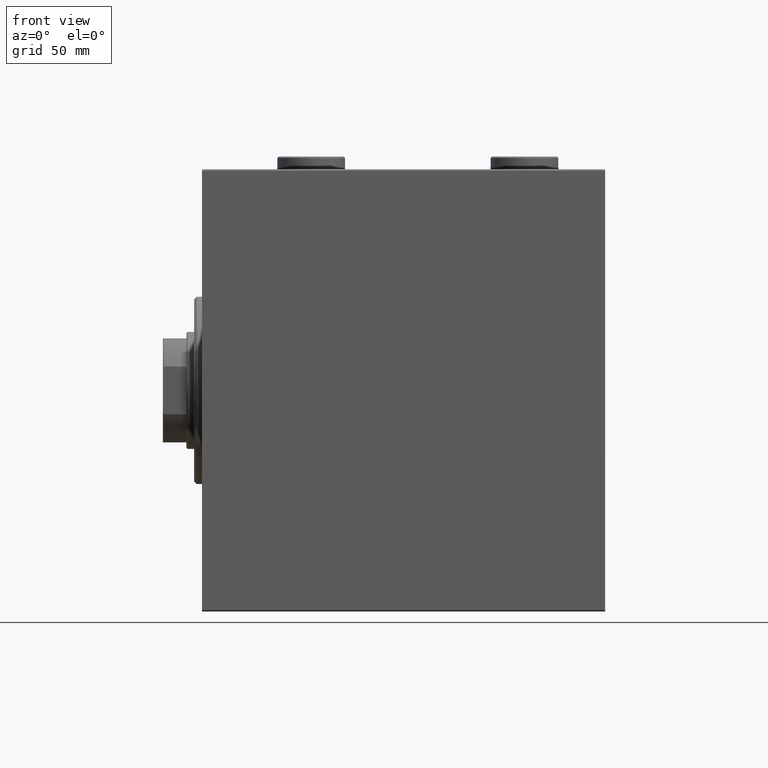
[diagram: clean part render]
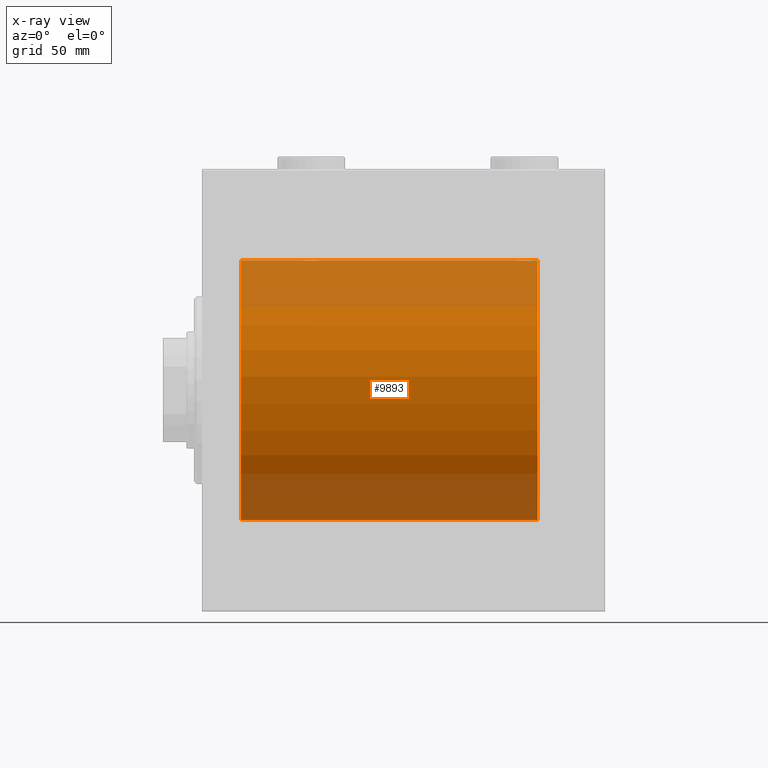
[diagram: x-ray — body ghosted, one internal face saturated and labeled with its STEP entity id]
A machine part, front view, then the same camera in x-ray: the body is ghosted and one INTERNAL B-rep face — a face not visible from any outside direction — is saturated and labeled: STEP entity #9893.
In plain terms, the highlighted cylindrical surface (partial cylindrical patch) has radius 50 mm, axis along (-1, -0, -0).
Its self-contained STEP definition (entity closure, byte-faithful):
#40 = CIRCLE ( 'NONE', #28056, 50.00000000000000000 ) ;
#101 = CARTESIAN_POINT ( 'NONE',  ( 129.0000000000000000, 6.123233995736766085E-15, -50.00000000000000000 ) ) ;
#409 = CARTESIAN_POINT ( 'NONE',  ( 129.0000000000000000, 6.123233995736766085E-15, -50.00000000000000000 ) ) ;
#445 = EDGE_LOOP ( 'NONE', ( #11033, #26401, #2624, #40806, #2026, #11689, #28108, #7104, #24722, #33511, #25622, #31688 ) ) ;
#1419 = VERTEX_POINT ( 'NONE', #7781 ) ;
#1695 = EDGE_CURVE ( 'NONE', #23733, #27597, #16130, .T. ) ;
#1954 = VERTEX_POINT ( 'NONE', #36827 ) ;
#2026 = ORIENTED_EDGE ( 'NONE', *, *, #10795, .T. ) ;
#2449 = CARTESIAN_POINT ( 'NONE',  ( 119.7500000000000000, -0.2773743941468521657, 50.00000000000001421 ) ) ;
#2559 = CARTESIAN_POINT ( 'NONE',  ( 38.62118282736263097, -2.593114840406133492, 49.93325460257641168 ) ) ;
#2624 = ORIENTED_EDGE ( 'NONE', *, *, #15354, .T. ) ;
#2677 = CARTESIAN_POINT ( 'NONE',  ( 126.5882021467620007, -3.382416624899781787, 49.88570010427956447 ) ) ;
#2908 = CARTESIAN_POINT ( 'NONE',  ( 122.1125526060720148, -3.818052230167721994, 49.85412671291930309 ) ) ;
#3021 = CARTESIAN_POINT ( 'NONE',  ( 40.89676703965783844, -4.113647494206490229, 49.83052139214891696 ) ) ;
#3134 = CARTESIAN_POINT ( 'NONE',  ( 128.2224263552077730, -0.5587117664567089470, 49.99763378604803421 ) ) ;
#3846 = CARTESIAN_POINT ( 'NONE',  ( 125.8874473939280136, -3.818052230167727323, -49.85412671291929598 ) ) ;
#4065 = CARTESIAN_POINT ( 'NONE',  ( 125.1032329603421545, -4.113647494206490229, -49.83052139214891696 ) ) ;
#4201 = CARTESIAN_POINT ( 'NONE',  ( 40.11782950515556934, -3.820681512513381506, -49.85392475515401145 ) ) ;
#4295 = CARTESIAN_POINT ( 'NONE',  ( 119.9692020384465678, -1.375411031076060997, -49.98173289062309976 ) ) ;
#4523 = CARTESIAN_POINT ( 'NONE',  ( 121.1930216816068935, -3.203153387937336394, -49.89767833571684719 ) ) ;
#4649 = CYLINDRICAL_SURFACE ( 'NONE', #6622, 50.00000000000000000 ) ;
#4749 = CARTESIAN_POINT ( 'NONE',  ( 122.9026238212096303, -4.115209769591122502, -49.83039196709102470 ) ) ;
#4852 = B_SPLINE_CURVE_WITH_KNOTS ( 'NONE', 3,
 ( #17935, #18153, #32475, #14685, #22303, #25076, #39642, #42877, #31790, #35486, #43106, #28760, #3846, #32024, #4065, #28302, #21392, #14460, #39416, #4749, #7529, #11223, #7298, #7978, #4523, #25301, #42422, #28986, #32704, #4295, #7750, #25753, #28535, #21842 ),
 .UNSPECIFIED., .F., .F.,
 ( 4, 2, 2, 2, 2, 2, 2, 2, 2, 2, 2, 2, 2, 2, 2, 2, 4 ),
 ( 0.01329343152928756308, 0.01412407817529634686, 0.01495472482130513238, 0.01578537146731391616, 0.01661601811332270168, 0.01744666475933148719, 0.01827731140534026924, 0.01910795805134905476, 0.01993860469735783680, 0.02076925134336662232, 0.02159989798937540784, 0.02243054463538419335, 0.02326119128139297540, 0.02409183792740176092, 0.02492248457341054296, 0.02575313121941932848, 0.02658377786542811400 ),
 .UNSPECIFIED. ) ;
#4905 = CARTESIAN_POINT ( 'NONE',  ( 37.77689247201000455, -0.5531336717329051744, 49.99769193709643389 ) ) ;
#5562 = CARTESIAN_POINT ( 'NONE',  ( 45.37519984081967550, -2.597781786597470610, 49.93300953359122474 ) ) ;
#5794 = CARTESIAN_POINT ( 'NONE',  ( 39.86863600553844122, -3.687400765141535253, 49.86408552998298660 ) ) ;
#5827 = CARTESIAN_POINT ( 'NONE',  ( 44.59312720885956338, -3.378657745070617224, -49.88595615988430154 ) ) ;
#6134 = CARTESIAN_POINT ( 'NONE',  ( 121.1884693348457915, -3.199146701881667276, 49.89793607725462010 ) ) ;
#6364 = CARTESIAN_POINT ( 'NONE',  ( 124.2772492703791727, -4.250219976861645321, 49.81902879621014790 ) ) ;
#6478 = EDGE_CURVE ( 'NONE', #10744, #43089, #24810, .T. ) ;
#6479 = CARTESIAN_POINT ( 'NONE',  ( 41.71604712973302753, -4.249777379711412451, 49.81906655360197789 ) ) ;
#6512 = CARTESIAN_POINT ( 'NONE',  ( 46.25000000000000000, 6.123233970928580774E-15, -50.00000000000000000 ) ) ;
#6587 = CARTESIAN_POINT ( 'NONE',  ( 127.6860283212194958, -2.133925816755182225, 49.95498245321556396 ) ) ;
#6622 = AXIS2_PLACEMENT_3D ( 'NONE', #31747, #10483, #21121 ) ;
#6740 = CARTESIAN_POINT ( 'NONE',  ( 44.13136399446156588, -3.687400765141522818, -49.86408552998298660 ) ) ;
#6818 = CARTESIAN_POINT ( 'NONE',  ( 125.3671064755457536, -4.033756670430841851, 49.83713703490973757 ) ) ;
#6920 = VERTEX_POINT ( 'NONE', #12662 ) ;
#7104 = ORIENTED_EDGE ( 'NONE', *, *, #38154, .F. ) ;
#7145 = DIRECTION ( 'NONE',  ( -1.000000000000000000, -0.000000000000000000, -0.000000000000000000 ) ) ;
#7204 = CARTESIAN_POINT ( 'NONE',  ( 41.44591435119853173, -4.222816005855206001, -49.82138837911246299 ) ) ;
#7298 = CARTESIAN_POINT ( 'NONE',  ( 121.8736835512492149, -3.690299572754727642, -49.86386974736159772 ) ) ;
#7529 = CARTESIAN_POINT ( 'NONE',  ( 122.6328935244542606, -4.033756670430865832, -49.83713703490974467 ) ) ;
#7656 = CARTESIAN_POINT ( 'NONE',  ( 38.80078072038717352, -2.811461347331107419, -49.92127983148852621 ) ) ;
#7750 = CARTESIAN_POINT ( 'NONE',  ( 119.8875029891966335, -1.108337267831507766, -49.98846998601261760 ) ) ;
#7781 = CARTESIAN_POINT ( 'NONE',  ( 128.2500000000000000, 6.123233970923453178E-15, -50.00000000000000000 ) ) ;
#7978 = CARTESIAN_POINT ( 'NONE',  ( 121.4117978532379709, -3.382416624899787561, -49.88570010427956447 ) ) ;
#7993 = B_SPLINE_CURVE_WITH_KNOTS ( 'NONE', 3,
 ( #8357, #22449, #4905, #29598, #12050, #26134, #16882, #2559, #9715, #37450, #34666, #5794, #13183, #38137, #3021, #16434, #6479, #40913, #17113, #27495, #9249, #23341, #27260, #34440, #34215, #31207, #5562, #41596, #41370, #45305, #16654, #12957, #45076, #9938 ),
 .UNSPECIFIED., .F., .F.,
 ( 4, 2, 2, 2, 2, 2, 2, 2, 2, 2, 2, 2, 2, 2, 2, 2, 4 ),
 ( 0.01329343152928754226, 0.01412407817529632605, 0.01495472482130511156, 0.01578537146731389534, 0.01661601811332268086, 0.01744666475933146638, 0.01827731140534024842, 0.01910795805134903394, 0.01993860469735781599, 0.02076925134336660150, 0.02159989798937538702, 0.02243054463538417254, 0.02326119128139295458, 0.02409183792740174010, 0.02492248457341052215, 0.02575313121941930766, 0.02658377786542809318 ),
 .UNSPECIFIED. ) ;
#8152 = EDGE_CURVE ( 'NONE', #15731, #1954, #41985, .T. ) ;
#8357 = CARTESIAN_POINT ( 'NONE',  ( 37.75000000000000711, -2.480809774739037926E-23, 50.00000000000000000 ) ) ;
#9249 = CARTESIAN_POINT ( 'NONE',  ( 43.36710647554575360, -4.033756670430856062, 49.83713703490974467 ) ) ;
#9286 = CARTESIAN_POINT ( 'NONE',  ( 44.81153066515419425, -3.199146701881665500, -49.89793607725460589 ) ) ;
#9593 = CARTESIAN_POINT ( 'NONE',  ( 121.8686360055384768, -3.687400765141539249, 49.86408552998300081 ) ) ;
#9715 = CARTESIAN_POINT ( 'NONE',  ( 38.79696438048009099, -2.807099414226281731, 49.92152599098507437 ) ) ;
#9827 = CARTESIAN_POINT ( 'NONE',  ( 121.4068727911404437, -3.378657745070632767, 49.88595615988429444 ) ) ;
#9893 = ADVANCED_FACE ( 'NONE', ( #42142 ), #4649, .F. ) ;
#9938 = CARTESIAN_POINT ( 'NONE',  ( 46.25000000000000000, 5.695507803017738218E-16, 50.00000000000000000 ) ) ;
#10003 = CARTESIAN_POINT ( 'NONE',  ( 128.2499999999999716, 4.902412868109812945E-15, 50.00000000000000000 ) ) ;
#10052 = CARTESIAN_POINT ( 'NONE',  ( 123.4400213230435099, -4.222042462213122072, 49.82145436824654183 ) ) ;
#10081 = EDGE_CURVE ( 'NONE', #31649, #37510, #28145, .T. ) ;
#10201 = CARTESIAN_POINT ( 'NONE',  ( 46.22310752799000966, -0.5531336717328987351, -49.99769193709643389 ) ) ;
#10276 = CARTESIAN_POINT ( 'NONE',  ( 120.7969643804801052, -2.807099414226272405, 49.92152599098507437 ) ) ;
#10427 = CARTESIAN_POINT ( 'NONE',  ( 37.88750298919666903, -1.108337267831496886, -49.98846998601261760 ) ) ;
#10483 = DIRECTION ( 'NONE',  ( -1.000000000000000000, -0.000000000000000000, -0.000000000000000000 ) ) ;
#10657 = CARTESIAN_POINT ( 'NONE',  ( 40.90262382120964446, -4.115209769591110067, -49.83039196709102470 ) ) ;
#10744 = VERTEX_POINT ( 'NONE', #40278 ) ;
#10795 = EDGE_CURVE ( 'NONE', #43089, #31649, #41995, .T. ) ;
#10801 = VECTOR ( 'NONE', #40874, 1000.000000000000000 ) ;
#11033 = ORIENTED_EDGE ( 'NONE', *, *, #8152, .F. ) ;
#11124 = CARTESIAN_POINT ( 'NONE',  ( 37.75000000000001421, -0.2808785465865695774, -50.00000000000001421 ) ) ;
#11223 = CARTESIAN_POINT ( 'NONE',  ( 122.1178295051555551, -3.820681512513399269, -49.85392475515401145 ) ) ;
#11689 = ORIENTED_EDGE ( 'NONE', *, *, #10081, .T. ) ;
#11801 = VECTOR ( 'NONE', #7145, 1000.000000000000000 ) ;
#11902 = DIRECTION ( 'NONE',  ( -1.000000000000000000, -0.000000000000000000, -0.000000000000000000 ) ) ;
#12014 = LINE ( 'NONE', #15259, #10801 ) ;
#12050 = CARTESIAN_POINT ( 'NONE',  ( 37.96727357902688738, -1.369753890039657085, 49.98188917176553048 ) ) ;
#12222 = EDGE_CURVE ( 'NONE', #23733, #6920, #44024, .T. ) ;
#12581 = LINE ( 'NONE', #29451, #30907 ) ;
#12662 = CARTESIAN_POINT ( 'NONE',  ( 46.25000000000000000, 5.695507803017738218E-16, 50.00000000000000000 ) ) ;
#12845 = CARTESIAN_POINT ( 'NONE',  ( 119.9672735790268376, -1.369753890039655975, 49.98188917176552337 ) ) ;
#12957 = CARTESIAN_POINT ( 'NONE',  ( 46.22242635520780851, -0.5587117664567118336, 49.99763378604802000 ) ) ;
#13183 = CARTESIAN_POINT ( 'NONE',  ( 40.11255260607201478, -3.818052230167724215, 49.85412671291930309 ) ) ;
#13222 = CARTESIAN_POINT ( 'NONE',  ( 45.82100581985226739, -1.881229021238118859, -49.96525240872482954 ) ) ;
#13299 = CARTESIAN_POINT ( 'NONE',  ( 120.3106284432061273, -2.128188802142369163, 49.95522967821973737 ) ) ;
#14460 = CARTESIAN_POINT ( 'NONE',  ( 123.7227507296208415, -4.250219976861655979, -49.81902879621013369 ) ) ;
#14570 = CARTESIAN_POINT ( 'NONE',  ( 15.00000000000000000, 6.123233995736766085E-15, -50.00000000000000000 ) ) ;
#14685 = CARTESIAN_POINT ( 'NONE',  ( 128.1143191330600359, -1.101350136471738850, -49.98862054280448319 ) ) ;
#14819 = CARTESIAN_POINT ( 'NONE',  ( 38.18160751012128884, -1.886522330773416911, -49.96505190380066352 ) ) ;
#15259 = CARTESIAN_POINT ( 'NONE',  ( 129.0000000000000000, 0.000000000000000000, 50.00000000000000000 ) ) ;
#15354 = EDGE_CURVE ( 'NONE', #1419, #10744, #4852, .T. ) ;
#15731 = VERTEX_POINT ( 'NONE', #25470 ) ;
#16130 = B_SPLINE_CURVE_WITH_KNOTS ( 'NONE', 3,
 ( #20227, #2449, #34104, #27606, #12845, #26916, #13299, #41253, #10276, #6134, #9827, #9593, #2908, #27374, #41029, #10052, #23677, #6364, #34321, #38477, #6818, #30624, #31091, #2677, #16997, #45192, #23455, #6587, #34778, #20683, #20007, #3134, #17223, #31312 ),
 .UNSPECIFIED., .F., .F.,
 ( 4, 2, 2, 2, 2, 2, 2, 2, 2, 2, 2, 2, 2, 2, 2, 2, 4 ),
 ( 0.01329343152928749543, 0.01412407817529626013, 0.01495472482130502483, 0.01578537146731378779, 0.01661601811332255249, 0.01744666475933131719, 0.01827731140534008189, 0.01910795805134884659, 0.01993860469735761129, 0.02076925134336637599, 0.02159989798937517885, 0.02243054463538398519, 0.02326119128139279152, 0.02409183792740159785, 0.02492248457341040419, 0.02575313121941921052, 0.02658377786542801685 ),
 .UNSPECIFIED. ) ;
#16434 = CARTESIAN_POINT ( 'NONE',  ( 41.44002132304353125, -4.222042462213131842, 49.82145436824653473 ) ) ;
#16472 = CARTESIAN_POINT ( 'NONE',  ( 43.10323296034216156, -4.113647494206476907, -49.83052139214892406 ) ) ;
#16654 = CARTESIAN_POINT ( 'NONE',  ( 46.11249701080335228, -1.108337267831489115, 49.98846998601261760 ) ) ;
#16882 = CARTESIAN_POINT ( 'NONE',  ( 38.31062844320614147, -2.128188802142369163, 49.95522967821975158 ) ) ;
#16997 = CARTESIAN_POINT ( 'NONE',  ( 126.8069783183931065, -3.203153387937318186, 49.89767833571684008 ) ) ;
#17113 = CARTESIAN_POINT ( 'NONE',  ( 42.55408564880149669, -4.222816005855214883, 49.82138837911247009 ) ) ;
#17223 = CARTESIAN_POINT ( 'NONE',  ( 128.2500000000000284, -0.2808785465865650810, 50.00000000000002132 ) ) ;
#17506 = VECTOR ( 'NONE', #45399, 1000.000000000000000 ) ;
#17935 = CARTESIAN_POINT ( 'NONE',  ( 128.2500000000000000, 6.123233970923453178E-15, -50.00000000000000000 ) ) ;
#18061 = CARTESIAN_POINT ( 'NONE',  ( 37.77757364479220570, -0.5587117664567219366, -49.99763378604802000 ) ) ;
#18153 = CARTESIAN_POINT ( 'NONE',  ( 128.2500000000000000, -0.2773743941468452823, -50.00000000000000711 ) ) ;
#18293 = CARTESIAN_POINT ( 'NONE',  ( 39.41179785323799933, -3.382416624899781787, -49.88570010427956447 ) ) ;
#18723 = CARTESIAN_POINT ( 'NONE',  ( 119.7500000000000000, -2.480297015150644268E-23, 50.00000000000000000 ) ) ;
#19928 = CARTESIAN_POINT ( 'NONE',  ( 43.88744739392799943, -3.818052230167712668, -49.85412671291930309 ) ) ;
#20007 = CARTESIAN_POINT ( 'NONE',  ( 128.1124970108033096, -1.108337267831486006, 49.98846998601263181 ) ) ;
#20227 = CARTESIAN_POINT ( 'NONE',  ( 119.7500000000000000, -2.480297015150644268E-23, 50.00000000000000000 ) ) ;
#20586 = VECTOR ( 'NONE', #32518, 1000.000000000000000 ) ;
#20683 = CARTESIAN_POINT ( 'NONE',  ( 128.0307979615534464, -1.375411031076037460, 49.98173289062309976 ) ) ;
#20927 = CARTESIAN_POINT ( 'NONE',  ( 15.00000000000000000, 0.000000000000000000, 0.000000000000000000 ) ) ;
#21121 = DIRECTION ( 'NONE',  ( 0.000000000000000000, 0.000000000000000000, 1.000000000000000000 ) ) ;
#21296 = CARTESIAN_POINT ( 'NONE',  ( 39.19302168160691480, -3.203153387937319962, -49.89767833571684719 ) ) ;
#21392 = CARTESIAN_POINT ( 'NONE',  ( 124.2839528702669725, -4.249777379711414227, -49.81906655360197789 ) ) ;
#21523 = CARTESIAN_POINT ( 'NONE',  ( 38.62480015918034582, -2.597781786597465725, -49.93300953359122474 ) ) ;
#21842 = CARTESIAN_POINT ( 'NONE',  ( 119.7499999999999858, -1.552464266337571260E-14, -50.00000000000000000 ) ) ;
#21976 = CARTESIAN_POINT ( 'NONE',  ( 42.28395287026698668, -4.249777379711400904, -49.81906655360197789 ) ) ;
#22303 = CARTESIAN_POINT ( 'NONE',  ( 128.0327264209731197, -1.369753890039650202, -49.98188917176553048 ) ) ;
#22449 = CARTESIAN_POINT ( 'NONE',  ( 37.75000000000001421, -0.2773743941468532759, 50.00000000000000711 ) ) ;
#23341 = CARTESIAN_POINT ( 'NONE',  ( 43.88217049484443777, -3.820681512513388611, 49.85392475515401145 ) ) ;
#23455 = CARTESIAN_POINT ( 'NONE',  ( 127.3751998408196329, -2.597781786597467057, 49.93300953359122474 ) ) ;
#23677 = CARTESIAN_POINT ( 'NONE',  ( 123.7160471297329991, -4.249777379711403569, 49.81906655360197789 ) ) ;
#23733 = VERTEX_POINT ( 'NONE', #18723 ) ;
#24069 = CARTESIAN_POINT ( 'NONE',  ( 15.00000000000000000, 0.000000000000000000, 50.00000000000000000 ) ) ;
#24288 = CARTESIAN_POINT ( 'NONE',  ( 45.20303561951990901, -2.807099414226270184, -49.92152599098507437 ) ) ;
#24692 = CARTESIAN_POINT ( 'NONE',  ( 129.0000000000000000, 6.123233995736766085E-15, -50.00000000000000000 ) ) ;
#24722 = ORIENTED_EDGE ( 'NONE', *, *, #42467, .T. ) ;
#24810 = LINE ( 'NONE', #101, #17506 ) ;
#25076 = CARTESIAN_POINT ( 'NONE',  ( 127.8210058198522603, -1.881229021238124632, -49.96525240872482954 ) ) ;
#25280 = VERTEX_POINT ( 'NONE', #24069 ) ;
#25301 = CARTESIAN_POINT ( 'NONE',  ( 120.8007807203871522, -2.811461347331123406, -49.92127983148851200 ) ) ;
#25470 = CARTESIAN_POINT ( 'NONE',  ( 129.0000000000000000, 6.123233995736766085E-15, -50.00000000000000000 ) ) ;
#25622 = ORIENTED_EDGE ( 'NONE', *, *, #1695, .T. ) ;
#25753 = CARTESIAN_POINT ( 'NONE',  ( 119.7775736447921986, -0.5587117664567315956, -49.99763378604802000 ) ) ;
#26134 = CARTESIAN_POINT ( 'NONE',  ( 38.17899418014773971, -1.881229021238130183, 49.96525240872482954 ) ) ;
#26401 = ORIENTED_EDGE ( 'NONE', *, *, #39752, .T. ) ;
#26916 = CARTESIAN_POINT ( 'NONE',  ( 120.1789941801477539, -1.881229021238129073, 49.96525240872482243 ) ) ;
#27260 = CARTESIAN_POINT ( 'NONE',  ( 44.12631644875080639, -3.690299572754724533, 49.86386974736159772 ) ) ;
#27295 = CARTESIAN_POINT ( 'NONE',  ( 45.68937155679385853, -2.128188802142358949, -49.95522967821975158 ) ) ;
#27374 = CARTESIAN_POINT ( 'NONE',  ( 122.6266656342096582, -4.031616700143189291, 49.83731072121800310 ) ) ;
#27495 = CARTESIAN_POINT ( 'NONE',  ( 43.09737617879038396, -4.115209769591117173, 49.83039196709102470 ) ) ;
#27597 = VERTEX_POINT ( 'NONE', #10003 ) ;
#27606 = CARTESIAN_POINT ( 'NONE',  ( 119.8856808669399072, -1.101350136471743735, 49.98862054280448319 ) ) ;
#28056 = AXIS2_PLACEMENT_3D ( 'NONE', #20927, #35015, #31552 ) ;
#28108 = ORIENTED_EDGE ( 'NONE', *, *, #44504, .T. ) ;
#28145 = LINE ( 'NONE', #24692, #11801 ) ;
#28302 = CARTESIAN_POINT ( 'NONE',  ( 124.5599786769564474, -4.222042462213132730, -49.82145436824653473 ) ) ;
#28535 = CARTESIAN_POINT ( 'NONE',  ( 119.7499999999999858, -0.2808785465865775155, -50.00000000000001421 ) ) ;
#28674 = AXIS2_PLACEMENT_3D ( 'NONE', #35344, #29309, #42744 ) ;
#28760 = CARTESIAN_POINT ( 'NONE',  ( 126.1313639944615659, -3.687400765141528591, -49.86408552998298660 ) ) ;
#28986 = CARTESIAN_POINT ( 'NONE',  ( 120.3139716787804758, -2.133925816755196880, -49.95498245321555686 ) ) ;
#29309 = DIRECTION ( 'NONE',  ( -1.000000000000000000, 0.000000000000000000, 0.000000000000000000 ) ) ;
#29451 = CARTESIAN_POINT ( 'NONE',  ( 129.0000000000000000, 0.000000000000000000, 50.00000000000000000 ) ) ;
#29598 = CARTESIAN_POINT ( 'NONE',  ( 37.88568086693992143, -1.101350136471744845, 49.98862054280448319 ) ) ;
#30548 = CARTESIAN_POINT ( 'NONE',  ( 42.55997867695648296, -4.222042462213118519, -49.82145436824653473 ) ) ;
#30624 = CARTESIAN_POINT ( 'NONE',  ( 125.8821704948444022, -3.820681512513372624, 49.85392475515399724 ) ) ;
#30907 = VECTOR ( 'NONE', #11902, 1000.000000000000000 ) ;
#31091 = CARTESIAN_POINT ( 'NONE',  ( 126.1263164487507709, -3.690299572754721869, 49.86386974736159061 ) ) ;
#31207 = CARTESIAN_POINT ( 'NONE',  ( 45.19921927961282648, -2.811461347331111416, 49.92127983148852621 ) ) ;
#31238 = CARTESIAN_POINT ( 'NONE',  ( 46.25000000000000000, -0.2773743941468464480, -50.00000000000000711 ) ) ;
#31312 = CARTESIAN_POINT ( 'NONE',  ( 128.2499999999999716, 4.902412868109812945E-15, 50.00000000000000000 ) ) ;
#31552 = DIRECTION ( 'NONE',  ( 0.000000000000000000, 0.000000000000000000, 1.000000000000000000 ) ) ;
#31649 = VERTEX_POINT ( 'NONE', #40709 ) ;
#31688 = ORIENTED_EDGE ( 'NONE', *, *, #31894, .F. ) ;
#31747 = CARTESIAN_POINT ( 'NONE',  ( 129.0000000000000000, 0.000000000000000000, 0.000000000000000000 ) ) ;
#31790 = CARTESIAN_POINT ( 'NONE',  ( 127.2030356195199232, -2.807099414226285727, -49.92152599098507437 ) ) ;
#31894 = EDGE_CURVE ( 'NONE', #1954, #27597, #12014, .T. ) ;
#32024 = CARTESIAN_POINT ( 'NONE',  ( 125.3733343657903418, -4.031616700143195509, -49.83731072121799599 ) ) ;
#32380 = CARTESIAN_POINT ( 'NONE',  ( 37.96920203844656783, -1.375411031076042789, -49.98173289062309976 ) ) ;
#32475 = CARTESIAN_POINT ( 'NONE',  ( 128.2231075279900381, -0.5531336717328986241, -49.99769193709643389 ) ) ;
#32518 = DIRECTION ( 'NONE',  ( -1.000000000000000000, -0.000000000000000000, -0.000000000000000000 ) ) ;
#32704 = CARTESIAN_POINT ( 'NONE',  ( 120.1816075101212675, -1.886522330773437339, -49.96505190380065642 ) ) ;
#33170 = DIRECTION ( 'NONE',  ( -1.000000000000000000, -0.000000000000000000, -0.000000000000000000 ) ) ;
#33511 = ORIENTED_EDGE ( 'NONE', *, *, #12222, .F. ) ;
#34026 = CARTESIAN_POINT ( 'NONE',  ( 43.37333436579036317, -4.031616700143180410, -49.83731072121798888 ) ) ;
#34104 = CARTESIAN_POINT ( 'NONE',  ( 119.7768924720099903, -0.5531336717329051744, 49.99769193709643389 ) ) ;
#34215 = CARTESIAN_POINT ( 'NONE',  ( 44.80697831839309941, -3.203153387937326180, 49.89767833571684719 ) ) ;
#34321 = CARTESIAN_POINT ( 'NONE',  ( 124.5540856488014754, -4.222816005855207777, 49.82138837911247720 ) ) ;
#34440 = CARTESIAN_POINT ( 'NONE',  ( 44.58820214676200777, -3.382416624899783564, 49.88570010427956447 ) ) ;
#34510 = CARTESIAN_POINT ( 'NONE',  ( 46.25000000000000000, 6.123233970928580774E-15, -50.00000000000000000 ) ) ;
#34666 = CARTESIAN_POINT ( 'NONE',  ( 39.40687279114045083, -3.378657745070629659, 49.88595615988430154 ) ) ;
#34778 = CARTESIAN_POINT ( 'NONE',  ( 127.8183924898787183, -1.886522330773413358, 49.96505190380066352 ) ) ;
#35015 = DIRECTION ( 'NONE',  ( -1.000000000000000000, 0.000000000000000000, 0.000000000000000000 ) ) ;
#35344 = CARTESIAN_POINT ( 'NONE',  ( 129.0000000000000000, 0.000000000000000000, 0.000000000000000000 ) ) ;
#35486 = CARTESIAN_POINT ( 'NONE',  ( 126.8115306651541658, -3.199146701881681487, -49.89793607725462010 ) ) ;
#35621 = CARTESIAN_POINT ( 'NONE',  ( 38.31397167878049714, -2.133925816755183114, -49.95498245321557818 ) ) ;
#36827 = CARTESIAN_POINT ( 'NONE',  ( 129.0000000000000000, 0.000000000000000000, 50.00000000000000000 ) ) ;
#37450 = CARTESIAN_POINT ( 'NONE',  ( 39.18846933484581285, -3.199146701881677934, 49.89793607725460589 ) ) ;
#37510 = VERTEX_POINT ( 'NONE', #14570 ) ;
#37732 = CARTESIAN_POINT ( 'NONE',  ( 37.75000000000000711, -2.480809774739037926E-23, 50.00000000000000000 ) ) ;
#38137 = CARTESIAN_POINT ( 'NONE',  ( 40.62666563420963683, -4.031616700143192844, 49.83731072121799599 ) ) ;
#38154 = EDGE_CURVE ( 'NONE', #38687, #25280, #12581, .T. ) ;
#38396 = CARTESIAN_POINT ( 'NONE',  ( 45.37881717263736192, -2.593114840406122390, -49.93325460257641168 ) ) ;
#38477 = CARTESIAN_POINT ( 'NONE',  ( 125.0973761787903555, -4.115209769591107403, 49.83039196709103891 ) ) ;
#38687 = VERTEX_POINT ( 'NONE', #37732 ) ;
#39416 = CARTESIAN_POINT ( 'NONE',  ( 123.4459143511985246, -4.222816005855221100, -49.82138837911247009 ) ) ;
#39642 = CARTESIAN_POINT ( 'NONE',  ( 127.6893715567938585, -2.128188802142362945, -49.95522967821975158 ) ) ;
#39653 = CARTESIAN_POINT ( 'NONE',  ( 129.0000000000000000, 0.000000000000000000, 50.00000000000000000 ) ) ;
#39683 = LINE ( 'NONE', #409, #20586 ) ;
#39752 = EDGE_CURVE ( 'NONE', #15731, #1419, #39683, .T. ) ;
#40278 = CARTESIAN_POINT ( 'NONE',  ( 119.7499999999999858, -1.552464266337571260E-14, -50.00000000000000000 ) ) ;
#40709 = CARTESIAN_POINT ( 'NONE',  ( 37.75000000000000711, -7.073857814331912646E-15, -50.00000000000000000 ) ) ;
#40806 = ORIENTED_EDGE ( 'NONE', *, *, #6478, .T. ) ;
#40874 = DIRECTION ( 'NONE',  ( -1.000000000000000000, -0.000000000000000000, -0.000000000000000000 ) ) ;
#40913 = CARTESIAN_POINT ( 'NONE',  ( 42.27724927037917979, -4.250219976861652427, 49.81902879621013369 ) ) ;
#41029 = CARTESIAN_POINT ( 'NONE',  ( 122.8967670396578598, -4.113647494206484012, 49.83052139214893117 ) ) ;
#41253 = CARTESIAN_POINT ( 'NONE',  ( 120.6211828273626026, -2.593114840406131716, 49.93325460257638326 ) ) ;
#41350 = VECTOR ( 'NONE', #33170, 1000.000000000000000 ) ;
#41370 = CARTESIAN_POINT ( 'NONE',  ( 45.81839248987871827, -1.886522330773423572, 49.96505190380066352 ) ) ;
#41596 = CARTESIAN_POINT ( 'NONE',  ( 45.68602832121950286, -2.133925816755187110, 49.95498245321557818 ) ) ;
#41985 = CIRCLE ( 'NONE', #28674, 50.00000000000000000 ) ;
#41995 = B_SPLINE_CURVE_WITH_KNOTS ( 'NONE', 3,
 ( #6512, #31238, #10201, #45336, #44883, #13222, #27295, #38396, #24288, #9286, #5827, #6740, #19928, #34026, #16472, #30548, #21976, #43015, #7204, #10657, #42090, #4201, #42783, #18293, #21296, #7656, #21523, #35621, #14819, #32380, #10427, #18061, #11124, #42324 ),
 .UNSPECIFIED., .F., .F.,
 ( 4, 2, 2, 2, 2, 2, 2, 2, 2, 2, 2, 2, 2, 2, 2, 2, 4 ),
 ( 0.01329343152928756308, 0.01412407817529634686, 0.01495472482130513064, 0.01578537146731391269, 0.01661601811332269821, 0.01744666475933148025, 0.01827731140534026577, 0.01910795805134904782, 0.01993860469735782986, 0.02076925134336661538, 0.02159989798937540090, 0.02243054463538418294, 0.02326119128139296499, 0.02409183792740175051, 0.02492248457341053255, 0.02575313121941931460, 0.02658377786542810012 ),
 .UNSPECIFIED. ) ;
#42090 = CARTESIAN_POINT ( 'NONE',  ( 40.63289352445426772, -4.033756670430848068, -49.83713703490974467 ) ) ;
#42142 = FACE_OUTER_BOUND ( 'NONE', #445, .T. ) ;
#42324 = CARTESIAN_POINT ( 'NONE',  ( 37.75000000000000711, -7.073857814331912646E-15, -50.00000000000000000 ) ) ;
#42422 = CARTESIAN_POINT ( 'NONE',  ( 120.6248001591803387, -2.597781786597479936, -49.93300953359122474 ) ) ;
#42467 = EDGE_CURVE ( 'NONE', #38687, #6920, #7993, .T. ) ;
#42744 = DIRECTION ( 'NONE',  ( 0.000000000000000000, 0.000000000000000000, 1.000000000000000000 ) ) ;
#42783 = CARTESIAN_POINT ( 'NONE',  ( 39.87368355124922203, -3.690299572754720980, -49.86386974736159772 ) ) ;
#42877 = CARTESIAN_POINT ( 'NONE',  ( 127.3788171726373548, -2.593114840406129940, -49.93325460257641168 ) ) ;
#43015 = CARTESIAN_POINT ( 'NONE',  ( 41.72275072962083442, -4.250219976861640880, -49.81902879621014080 ) ) ;
#43089 = VERTEX_POINT ( 'NONE', #34510 ) ;
#43106 = CARTESIAN_POINT ( 'NONE',  ( 126.5931272088595705, -3.378657745070619445, -49.88595615988430154 ) ) ;
#44024 = LINE ( 'NONE', #39653, #41350 ) ;
#44504 = EDGE_CURVE ( 'NONE', #37510, #25280, #40, .T. ) ;
#44883 = CARTESIAN_POINT ( 'NONE',  ( 46.03272642097311973, -1.369753890039645983, -49.98188917176553048 ) ) ;
#45076 = CARTESIAN_POINT ( 'NONE',  ( 46.25000000000001421, -0.2808785465865648034, 50.00000000000001421 ) ) ;
#45192 = CARTESIAN_POINT ( 'NONE',  ( 127.1992192796128336, -2.811461347331102534, 49.92127983148852621 ) ) ;
#45305 = CARTESIAN_POINT ( 'NONE',  ( 46.03079796155342507, -1.375411031076046786, 49.98173289062309976 ) ) ;
#45336 = CARTESIAN_POINT ( 'NONE',  ( 46.11431913306007857, -1.101350136471736629, -49.98862054280448319 ) ) ;
#45399 = DIRECTION ( 'NONE',  ( -1.000000000000000000, -0.000000000000000000, -0.000000000000000000 ) ) ;